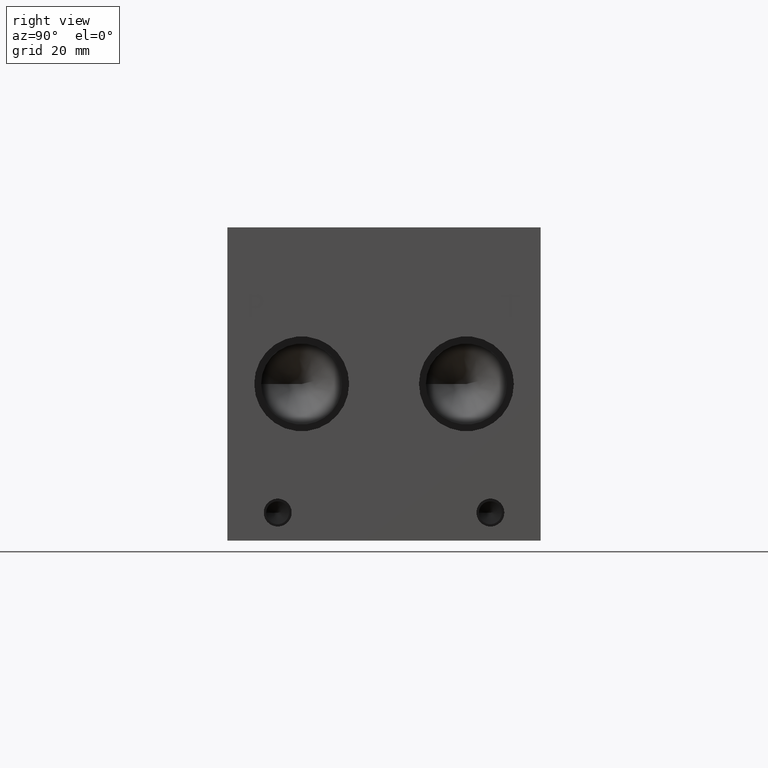
[diagram: clean part render]
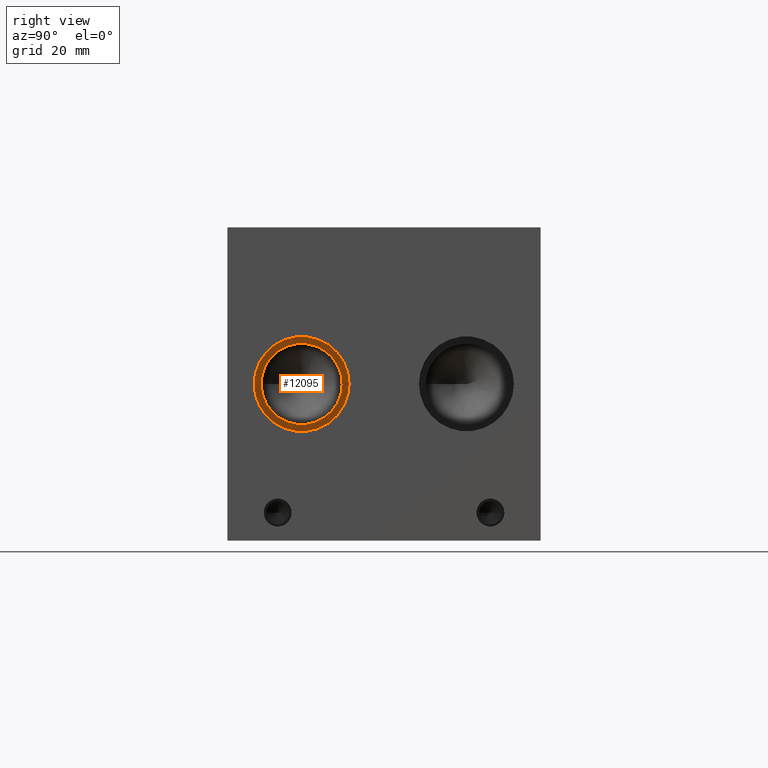
[diagram: same view with one face highlighted and labeled with its STEP entity id]
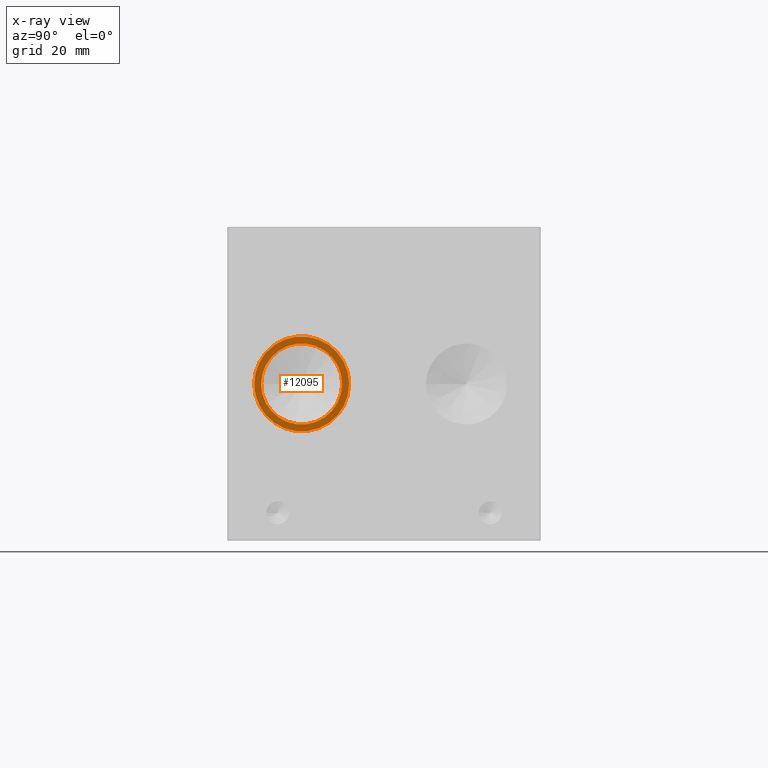
[diagram: x-ray of the same camera — body ghosted, the highlighted face saturated]
A machine part, right view. The second image highlights one B-rep face of the part: STEP entity #12095.
The next image is the same camera in x-ray: the body ghosted, the highlighted face saturated — about 0% of this face is hidden behind the body in this view.
In plain terms, the highlighted planar face has unit normal (1, 0, 0).
Its self-contained STEP definition (entity closure, byte-faithful):
#194=CIRCLE('',#12651,13.462);
#195=CIRCLE('',#12652,13.462);
#196=CIRCLE('',#12653,11.5062);
#895=FACE_BOUND('',#2168,.T.);
#1474=FACE_OUTER_BOUND('',#2167,.T.);
#2167=EDGE_LOOP('',(#10320,#10321));
#2168=EDGE_LOOP('',(#10322));
#5544=VERTEX_POINT('',#20596);
#5545=VERTEX_POINT('',#20597);
#5546=VERTEX_POINT('',#20600);
#7182=EDGE_CURVE('',#5544,#5545,#194,.T.);
#7183=EDGE_CURVE('',#5545,#5544,#195,.T.);
#7184=EDGE_CURVE('',#5546,#5546,#196,.T.);
#10320=ORIENTED_EDGE('',*,*,#7182,.T.);
#10321=ORIENTED_EDGE('',*,*,#7183,.T.);
#10322=ORIENTED_EDGE('',*,*,#7184,.F.);
#11039=PLANE('',#12650);
#12095=ADVANCED_FACE('',(#1474,#895),#11039,.T.);
#12650=AXIS2_PLACEMENT_3D('',#20595,#14841,#14842);
#12651=AXIS2_PLACEMENT_3D('',#20598,#14843,#14844);
#12652=AXIS2_PLACEMENT_3D('',#20599,#14845,#14846);
#12653=AXIS2_PLACEMENT_3D('',#20601,#14847,#14848);
#14841=DIRECTION('center_axis',(1.,0.,0.));
#14842=DIRECTION('ref_axis',(0.,1.,0.));
#14843=DIRECTION('center_axis',(1.,0.,0.));
#14844=DIRECTION('ref_axis',(0.,1.,0.));
#14845=DIRECTION('center_axis',(1.,0.,0.));
#14846=DIRECTION('ref_axis',(0.,1.,0.));
#14847=DIRECTION('center_axis',(1.,0.,0.));
#14848=DIRECTION('ref_axis',(0.,1.,0.));
#20595=CARTESIAN_POINT('Origin',(149.2504,21.082,44.45));
#20596=CARTESIAN_POINT('',(149.2504,34.544,44.45));
#20597=CARTESIAN_POINT('',(149.2504,7.62,44.45));
#20598=CARTESIAN_POINT('Origin',(149.2504,21.082,44.45));
#20599=CARTESIAN_POINT('Origin',(149.2504,21.082,44.45));
#20600=CARTESIAN_POINT('',(149.2504,9.5758,44.45));
#20601=CARTESIAN_POINT('Origin',(149.2504,21.082,44.45));